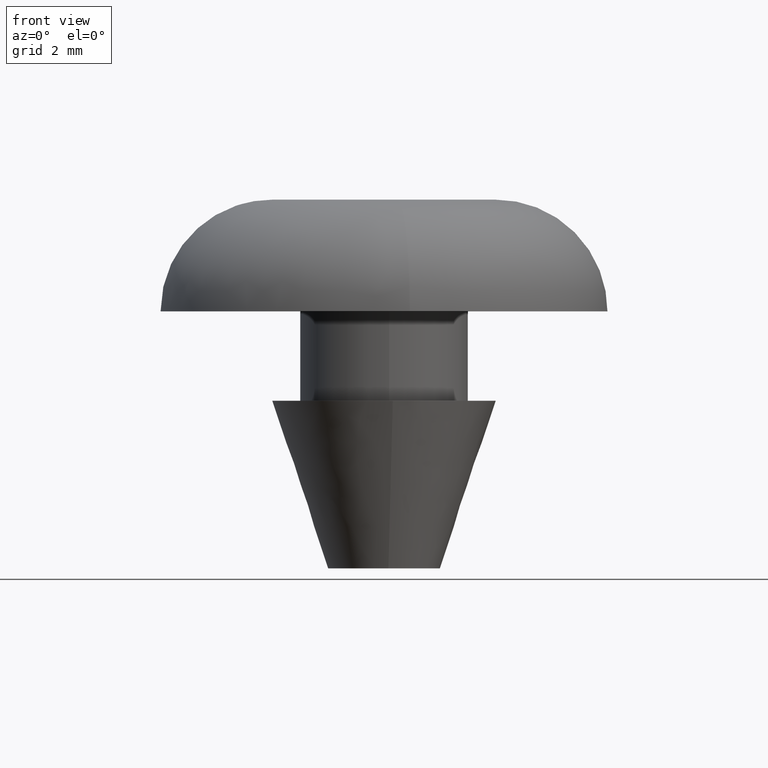
[diagram: clean part render]
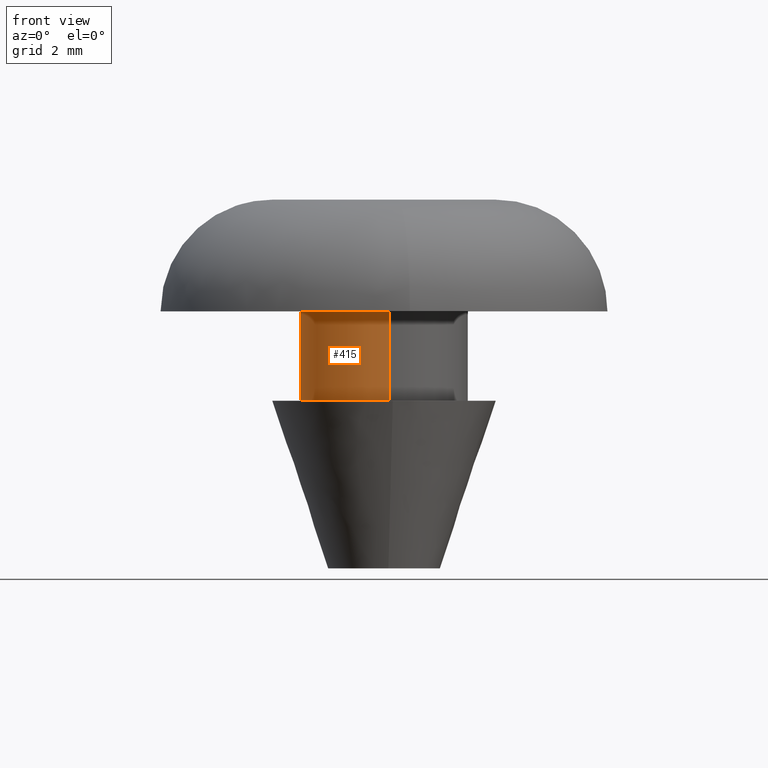
[diagram: same view with one face highlighted and labeled with its STEP entity id]
A machine part, front view. The second image highlights one B-rep face of the part: STEP entity #415.
In plain terms, the highlighted face is a freeform B-spline surface patch.
Its self-contained STEP definition (entity closure, byte-faithful):
#252=CARTESIAN_POINT('',(-0.177050448908415,1.489514396889302,4.599999999999993));
#253=VERTEX_POINT('',#252);
#271=CARTESIAN_POINT('',(0.091571162752735,-1.497202298338268,4.600000000000012));
#272=VERTEX_POINT('',#271);
#286=CARTESIAN_POINT('',(0.091571182612992,-1.497202297123606,3.0));
#287=VERTEX_POINT('',#286);
#288=CARTESIAN_POINT('',(0.091571162752735,-1.497202298338268,4.600000000000012));
#289=CARTESIAN_POINT('',(0.091571182612992,-1.497202297123606,3.0));
#290=QUASI_UNIFORM_CURVE('',1,(#288,#289),.UNSPECIFIED.,.F.,.U.);
#291=EDGE_CURVE('',#272,#287,#290,.T.);
#308=CARTESIAN_POINT('',(-0.177050459774724,1.489514395597690,3.0));
#309=VERTEX_POINT('',#308);
#325=CARTESIAN_POINT('',(-0.177050448908415,1.489514396889302,4.599999999999993));
#326=CARTESIAN_POINT('',(-0.177050459774724,1.489514395597690,3.0));
#327=QUASI_UNIFORM_CURVE('',1,(#325,#326),.UNSPECIFIED.,.F.,.U.);
#328=EDGE_CURVE('',#253,#309,#327,.T.);
#333=CARTESIAN_POINT('',(0.091572809302285,-1.497202197632800,4.640000000000001));
#334=CARTESIAN_POINT('',(-1.405629388330515,-1.588775006935085,4.640000000000001));
#335=CARTESIAN_POINT('',(-1.497202197632800,-0.091572809302285,4.640000000000001));
#336=CARTESIAN_POINT('',(-1.583679295098791,1.322315236259252,4.640000000000001));
#337=CARTESIAN_POINT('',(-0.177051351985138,1.489514289545500,4.640000000000001));
#338=CARTESIAN_POINT('',(0.091572809302285,-1.497202197632800,2.959000000000000));
#339=CARTESIAN_POINT('',(-1.405629388330515,-1.588775006935085,2.959000000000000));
#340=CARTESIAN_POINT('',(-1.497202197632800,-0.091572809302285,2.959000000000000));
#341=CARTESIAN_POINT('',(-1.583679295098791,1.322315236259252,2.958999999999999));
#342=CARTESIAN_POINT('',(-0.177051351985138,1.489514289545500,2.959000000000000));
#350=(BOUNDED_SURFACE()B_SPLINE_SURFACE(2,1,((#333,#338),(#334,#339),(#335,#340),(#336,#341),(#337,#342)),.UNSPECIFIED.,.F.,.F.,.U.)B_SPLINE_SURFACE_WITH_KNOTS((3,2,3),(2,2),(0.0,1.570796326794897,3.078760800517997),(0.0,1.0),.UNSPECIFIED.)GEOMETRIC_REPRESENTATION_ITEM()RATIONAL_B_SPLINE_SURFACE(((1.0,1.0),(0.707106781186548,0.707106781186548),(1.0,1.0),(0.718822509939086,0.718822509939086),(0.977505800795127,0.977505800795127)))REPRESENTATION_ITEM('')SURFACE());
#351=CARTESIAN_POINT('',(-1.500000000000000,0.0,4.600000000000000));
#352=VERTEX_POINT('',#351);
#353=CARTESIAN_POINT('',(-1.500000000000000,0.0,4.600000000000000));
#354=CARTESIAN_POINT('',(-1.500000000000000,1.332263415772623,4.600000000000000));
#355=CARTESIAN_POINT('',(-0.177050448908415,1.489514396889302,4.599999999999993));
#363=(BOUNDED_CURVE()B_SPLINE_CURVE(2,(#353,#354,#355),.UNSPECIFIED.,.F.,.U.)B_SPLINE_CURVE_WITH_KNOTS((3,3),(0.0,0.229562678445430),.UNSPECIFIED.)CURVE()GEOMETRIC_REPRESENTATION_ITEM()RATIONAL_B_SPLINE_CURVE((1.0,0.731050592762722,0.956027155859047))REPRESENTATION_ITEM(''));
#364=EDGE_CURVE('',#352,#253,#363,.T.);
#365=ORIENTED_EDGE('',*,*,#364,.T.);
#366=ORIENTED_EDGE('',*,*,#328,.T.);
#367=CARTESIAN_POINT('',(-1.500000000000000,0.0,3.0));
#368=VERTEX_POINT('',#367);
#369=CARTESIAN_POINT('',(-1.500000000000000,0.0,3.0));
#370=CARTESIAN_POINT('',(-1.500000000000000,1.332263396197527,3.0));
#371=CARTESIAN_POINT('',(-0.177050459774724,1.489514395597690,3.000000000000001));
#379=(BOUNDED_CURVE()B_SPLINE_CURVE(2,(#369,#370,#371),.UNSPECIFIED.,.F.,.U.)B_SPLINE_CURVE_WITH_KNOTS((3,3),(0.0,0.229562675979604),.UNSPECIFIED.)CURVE()GEOMETRIC_REPRESENTATION_ITEM()RATIONAL_B_SPLINE_CURVE((1.0,0.731050595651617,0.956027151025916))REPRESENTATION_ITEM(''));
#380=EDGE_CURVE('',#368,#309,#379,.T.);
#381=ORIENTED_EDGE('',*,*,#380,.F.);
#382=CARTESIAN_POINT('',(0.091571182612992,-1.497202297123605,3.000000000000001));
#383=CARTESIAN_POINT('',(0.045828329322765,-1.500000000000000,3.000000000000000));
#384=CARTESIAN_POINT('',(0.0,-1.500000000000000,3.0));
#385=CARTESIAN_POINT('',(-1.500000000000000,-1.500000000000000,3.0));
#386=CARTESIAN_POINT('',(-1.500000000000000,0.0,3.0));
#394=(BOUNDED_CURVE()B_SPLINE_CURVE(2,(#382,#383,#384,#385,#386),.UNSPECIFIED.,.F.,.U.)B_SPLINE_CURVE_WITH_KNOTS((3,2,3),(0.739333149711674,0.750000000000000,1.0),.UNSPECIFIED.)CURVE()GEOMETRIC_REPRESENTATION_ITEM()RATIONAL_B_SPLINE_CURVE((0.976072443456796,0.987503007537804,1.0,0.707106781186548,1.0))REPRESENTATION_ITEM(''));
#395=EDGE_CURVE('',#287,#368,#394,.T.);
#396=ORIENTED_EDGE('',*,*,#395,.F.);
#397=ORIENTED_EDGE('',*,*,#291,.F.);
#398=CARTESIAN_POINT('',(0.091571162752735,-1.497202298338268,4.600000000000014));
#399=CARTESIAN_POINT('',(0.045828319364795,-1.499999999999999,4.600000000000001));
#400=CARTESIAN_POINT('',(0.0,-1.500000000000000,4.600000000000000));
#401=CARTESIAN_POINT('',(-1.500000000000000,-1.500000000000000,4.599999999999999));
#402=CARTESIAN_POINT('',(-1.500000000000000,0.0,4.600000000000000));
#410=(BOUNDED_CURVE()B_SPLINE_CURVE(2,(#398,#399,#400,#401,#402),.UNSPECIFIED.,.F.,.U.)B_SPLINE_CURVE_WITH_KNOTS((3,2,3),(0.739333152000493,0.750000000000000,1.0),.UNSPECIFIED.)CURVE()GEOMETRIC_REPRESENTATION_ITEM()RATIONAL_B_SPLINE_CURVE((0.976072448362179,0.987503010219322,1.0,0.707106781186548,1.0))REPRESENTATION_ITEM(''));
#411=EDGE_CURVE('',#272,#352,#410,.T.);
#412=ORIENTED_EDGE('',*,*,#411,.T.);
#413=EDGE_LOOP('',(#365,#366,#381,#396,#397,#412));
#414=FACE_OUTER_BOUND('',#413,.T.);
#415=ADVANCED_FACE('',(#414),#350,.T.);